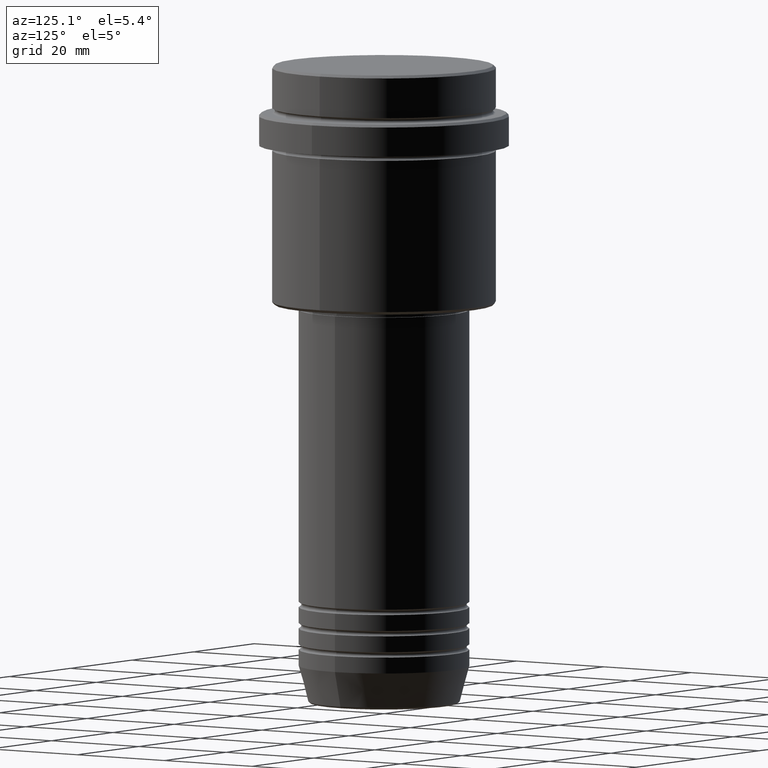
[diagram: clean part render]
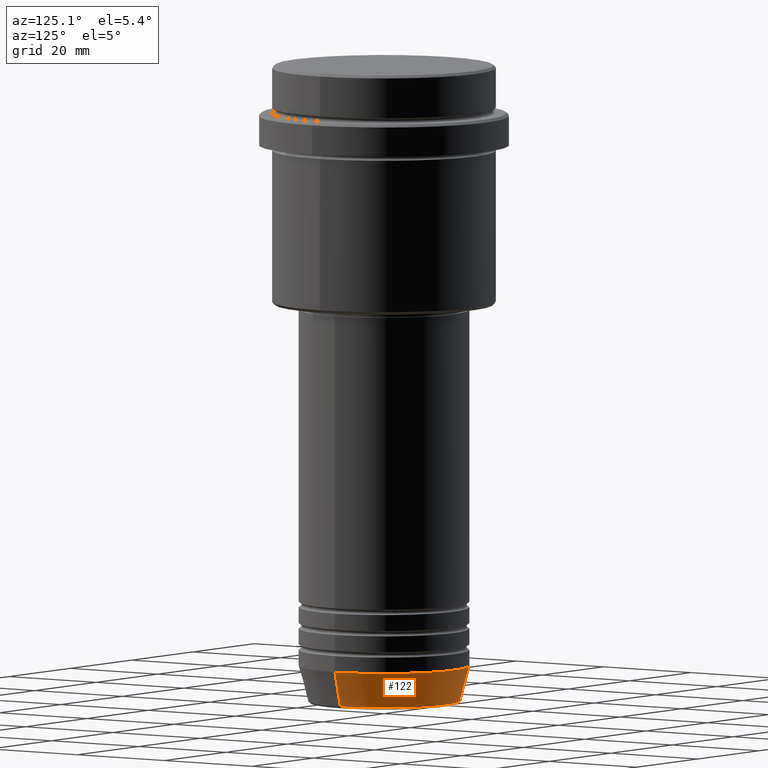
[diagram: same view with one face highlighted and labeled with its STEP entity id]
A machine part, auxiliary view. The second image highlights one B-rep face of the part: STEP entity #122.
In plain terms, the highlighted conical surface has half-angle 15 deg.
Its self-contained STEP definition (entity closure, byte-faithful):
#27 = LINE ( 'NONE', #429, #421 ) ;
#44 = CARTESIAN_POINT ( 'NONE',  ( 0.000000000000000000, 0.000000000000000000, -112.9999999999999858 ) ) ;
#113 = ORIENTED_EDGE ( 'NONE', *, *, #1382, .F. ) ;
#122 = ADVANCED_FACE ( 'NONE', ( #640 ), #488, .T. ) ;
#186 = DIRECTION ( 'NONE',  ( 1.000000000000000000, 0.000000000000000000, 0.000000000000000000 ) ) ;
#258 = VERTEX_POINT ( 'NONE', #892 ) ;
#336 = DIRECTION ( 'NONE',  ( -0.2588190451025213501, 3.169619151431772337E-17, 0.9659258262890680902 ) ) ;
#341 = ORIENTED_EDGE ( 'NONE', *, *, #928, .T. ) ;
#370 = ORIENTED_EDGE ( 'NONE', *, *, #964, .F. ) ;
#380 = CIRCLE ( 'NONE', #1266, 14.22365507213718949 ) ;
#396 = EDGE_CURVE ( 'NONE', #1054, #258, #380, .T. ) ;
#410 = LINE ( 'NONE', #742, #1034 ) ;
#417 = CARTESIAN_POINT ( 'NONE',  ( 0.000000000000000000, 0.000000000000000000, -112.9999999999999858 ) ) ;
#421 = VECTOR ( 'NONE', #336, 1000.000000000000000 ) ;
#425 = VERTEX_POINT ( 'NONE', #581 ) ;
#429 = CARTESIAN_POINT ( 'NONE',  ( -16.00000000000000000, 1.959434878635765131E-15, -112.9999999999999858 ) ) ;
#479 = VERTEX_POINT ( 'NONE', #835 ) ;
#488 = CONICAL_SURFACE ( 'NONE', #996, 16.00000000000000000, 0.2617993877991500740 ) ;
#537 = ORIENTED_EDGE ( 'NONE', *, *, #396, .T. ) ;
#581 = CARTESIAN_POINT ( 'NONE',  ( -16.00000000000000000, 1.959434878635765131E-15, -112.9999999999999858 ) ) ;
#620 = CIRCLE ( 'NONE', #720, 16.00000000000000000 ) ;
#624 = DIRECTION ( 'NONE',  ( 0.2588190451025213501, 0.000000000000000000, 0.9659258262890680902 ) ) ;
#640 = FACE_OUTER_BOUND ( 'NONE', #1338, .T. ) ;
#720 = AXIS2_PLACEMENT_3D ( 'NONE', #44, #762, #1223 ) ;
#742 = CARTESIAN_POINT ( 'NONE',  ( 16.00000000000000000, 0.000000000000000000, -112.9999999999999858 ) ) ;
#762 = DIRECTION ( 'NONE',  ( -0.000000000000000000, -0.000000000000000000, 1.000000000000000000 ) ) ;
#818 = DIRECTION ( 'NONE',  ( -0.000000000000000000, -0.000000000000000000, 1.000000000000000000 ) ) ;
#835 = CARTESIAN_POINT ( 'NONE',  ( 16.00000000000000000, 0.000000000000000000, -112.9999999999999858 ) ) ;
#892 = CARTESIAN_POINT ( 'NONE',  ( -14.22365507213718949, 1.850665122131323337E-15, -119.6294095225512564 ) ) ;
#928 = EDGE_CURVE ( 'NONE', #258, #425, #27, .T. ) ;
#938 = CARTESIAN_POINT ( 'NONE',  ( 0.000000000000000000, 0.000000000000000000, -119.6294095225512564 ) ) ;
#964 = EDGE_CURVE ( 'NONE', #479, #425, #620, .T. ) ;
#996 = AXIS2_PLACEMENT_3D ( 'NONE', #417, #1086, #1078 ) ;
#1034 = VECTOR ( 'NONE', #624, 1000.000000000000000 ) ;
#1054 = VERTEX_POINT ( 'NONE', #1087 ) ;
#1078 = DIRECTION ( 'NONE',  ( 1.000000000000000000, 0.000000000000000000, 0.000000000000000000 ) ) ;
#1086 = DIRECTION ( 'NONE',  ( -0.000000000000000000, -0.000000000000000000, 1.000000000000000000 ) ) ;
#1087 = CARTESIAN_POINT ( 'NONE',  ( 14.22365507213718949, 0.000000000000000000, -119.6294095225512564 ) ) ;
#1223 = DIRECTION ( 'NONE',  ( 1.000000000000000000, 0.000000000000000000, 0.000000000000000000 ) ) ;
#1266 = AXIS2_PLACEMENT_3D ( 'NONE', #938, #818, #186 ) ;
#1338 = EDGE_LOOP ( 'NONE', ( #537, #341, #370, #113 ) ) ;
#1382 = EDGE_CURVE ( 'NONE', #1054, #479, #410, .T. ) ;